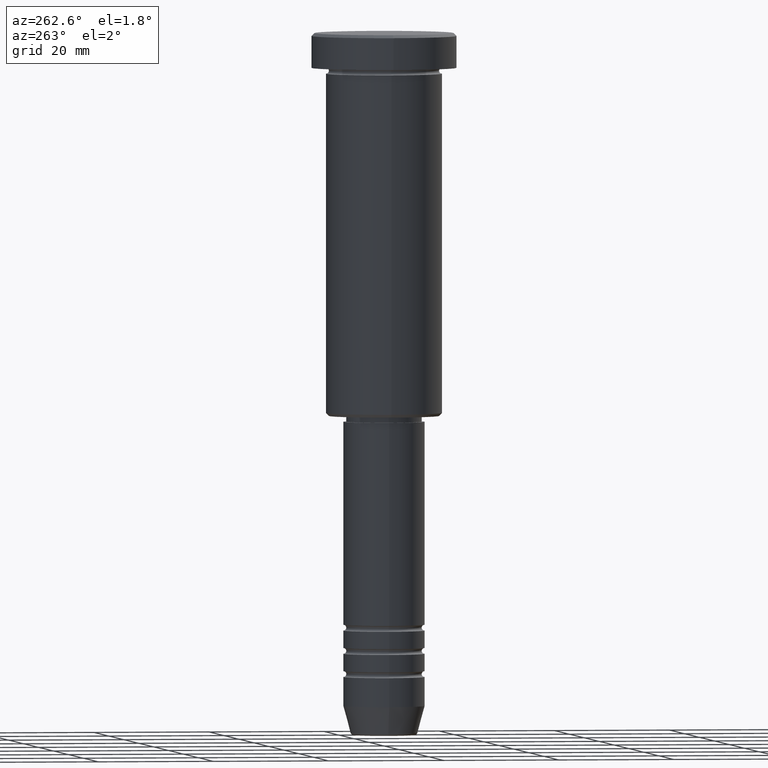
[diagram: clean part render]
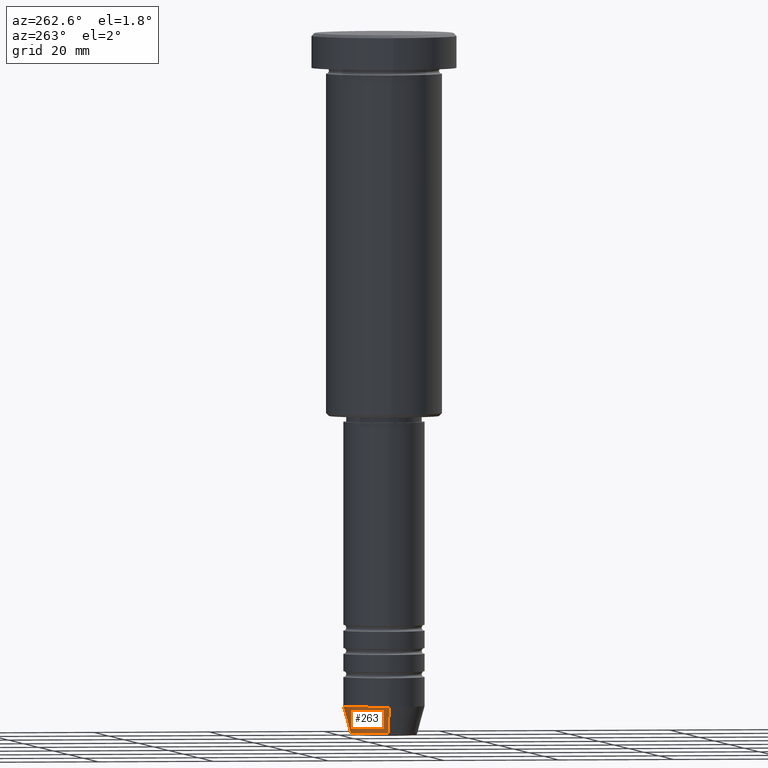
[diagram: same view with one face highlighted and labeled with its STEP entity id]
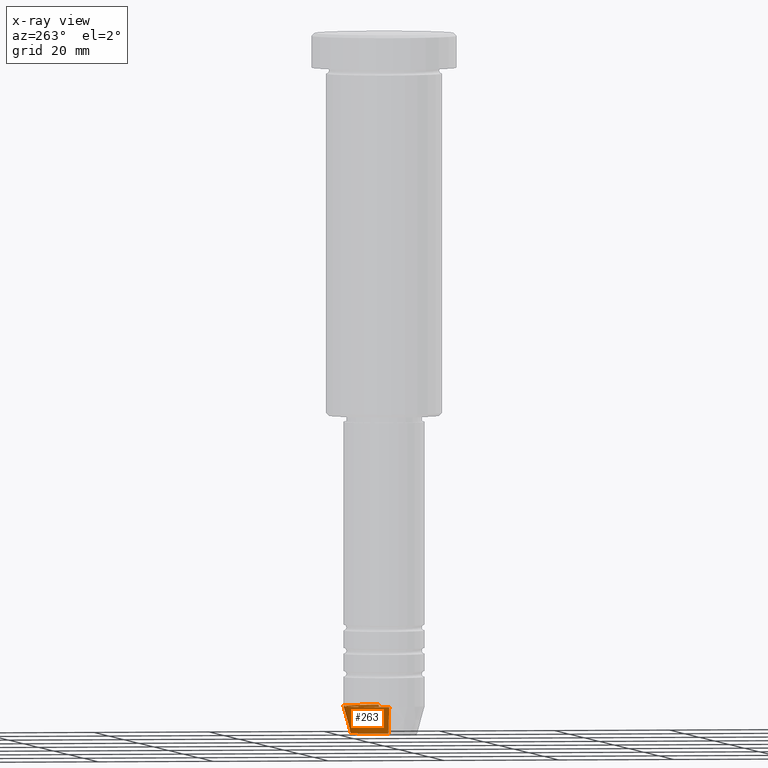
[diagram: x-ray of the same camera — body ghosted, the highlighted face saturated]
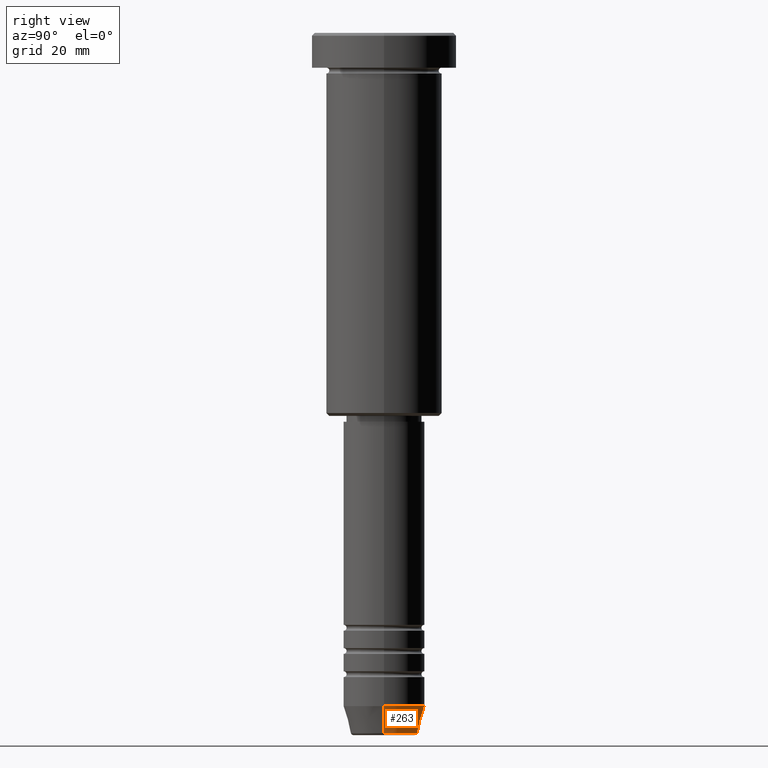
[diagram: same view with one face highlighted and labeled with its STEP entity id]
A machine part, auxiliary view. The second image highlights one B-rep face of the part: STEP entity #263.
The next image is the same camera in x-ray: the body ghosted, the highlighted face saturated — about 1% of this face is hidden behind the body in this view.
A second angle (right view) of the same face is appended — the face is thin or edge-on in the first view.
In plain terms, the highlighted conical surface has half-angle 15 deg.
Its self-contained STEP definition (entity closure, byte-faithful):
#6 = VERTEX_POINT ( 'NONE', #103 ) ;
#9 = ORIENTED_EDGE ( 'NONE', *, *, #20, .T. ) ;
#20 = EDGE_CURVE ( 'NONE', #128, #491, #213, .T. ) ;
#37 = FACE_OUTER_BOUND ( 'NONE', #163, .T. ) ;
#103 = CARTESIAN_POINT ( 'NONE',  ( 7.000000000000000000, 0.000000000000000000, -116.0000000000000000 ) ) ;
#128 = VERTEX_POINT ( 'NONE', #273 ) ;
#163 = EDGE_LOOP ( 'NONE', ( #9, #511, #620, #538 ) ) ;
#197 = DIRECTION ( 'NONE',  ( -0.2588190451025213501, 3.169619151431772337E-17, 0.9659258262890680902 ) ) ;
#213 = CIRCLE ( 'NONE', #686, 5.759553456999443988 ) ;
#214 = DIRECTION ( 'NONE',  ( 1.000000000000000000, 0.000000000000000000, 0.000000000000000000 ) ) ;
#223 = EDGE_CURVE ( 'NONE', #491, #1154, #662, .T. ) ;
#238 = CARTESIAN_POINT ( 'NONE',  ( -7.000000000000000000, 8.572527594031473190E-16, -116.0000000000000000 ) ) ;
#263 = ADVANCED_FACE ( 'NONE', ( #37 ), #622, .T. ) ;
#273 = CARTESIAN_POINT ( 'NONE',  ( 5.759553456999443988, 0.000000000000000000, -120.6294095225512422 ) ) ;
#305 = DIRECTION ( 'NONE',  ( -0.000000000000000000, -0.000000000000000000, 1.000000000000000000 ) ) ;
#325 = DIRECTION ( 'NONE',  ( 0.2588190451025213501, 0.000000000000000000, 0.9659258262890680902 ) ) ;
#331 = VECTOR ( 'NONE', #197, 1000.000000000000000 ) ;
#491 = VERTEX_POINT ( 'NONE', #789 ) ;
#511 = ORIENTED_EDGE ( 'NONE', *, *, #223, .T. ) ;
#538 = ORIENTED_EDGE ( 'NONE', *, *, #970, .F. ) ;
#620 = ORIENTED_EDGE ( 'NONE', *, *, #733, .F. ) ;
#622 = CONICAL_SURFACE ( 'NONE', #985, 7.000000000000000000, 0.2617993877991500740 ) ;
#648 = CARTESIAN_POINT ( 'NONE',  ( -7.000000000000000000, 8.572527594031473190E-16, -116.0000000000000000 ) ) ;
#662 = LINE ( 'NONE', #648, #331 ) ;
#686 = AXIS2_PLACEMENT_3D ( 'NONE', #1057, #955, #214 ) ;
#690 = CIRCLE ( 'NONE', #711, 7.000000000000000000 ) ;
#699 = CARTESIAN_POINT ( 'NONE',  ( 0.000000000000000000, 0.000000000000000000, -116.0000000000000000 ) ) ;
#711 = AXIS2_PLACEMENT_3D ( 'NONE', #699, #969, #1055 ) ;
#733 = EDGE_CURVE ( 'NONE', #6, #1154, #690, .T. ) ;
#789 = CARTESIAN_POINT ( 'NONE',  ( -5.759553456999443988, 7.812973149831957689E-16, -120.6294095225512422 ) ) ;
#790 = VECTOR ( 'NONE', #325, 1000.000000000000000 ) ;
#887 = CARTESIAN_POINT ( 'NONE',  ( 7.000000000000000000, 0.000000000000000000, -116.0000000000000000 ) ) ;
#937 = DIRECTION ( 'NONE',  ( 1.000000000000000000, 0.000000000000000000, 0.000000000000000000 ) ) ;
#955 = DIRECTION ( 'NONE',  ( -0.000000000000000000, -0.000000000000000000, 1.000000000000000000 ) ) ;
#969 = DIRECTION ( 'NONE',  ( -0.000000000000000000, -0.000000000000000000, 1.000000000000000000 ) ) ;
#970 = EDGE_CURVE ( 'NONE', #128, #6, #1076, .T. ) ;
#985 = AXIS2_PLACEMENT_3D ( 'NONE', #1040, #305, #937 ) ;
#1040 = CARTESIAN_POINT ( 'NONE',  ( 0.000000000000000000, 0.000000000000000000, -116.0000000000000000 ) ) ;
#1055 = DIRECTION ( 'NONE',  ( 1.000000000000000000, 0.000000000000000000, 0.000000000000000000 ) ) ;
#1057 = CARTESIAN_POINT ( 'NONE',  ( 0.000000000000000000, 0.000000000000000000, -120.6294095225512422 ) ) ;
#1076 = LINE ( 'NONE', #887, #790 ) ;
#1154 = VERTEX_POINT ( 'NONE', #238 ) ;